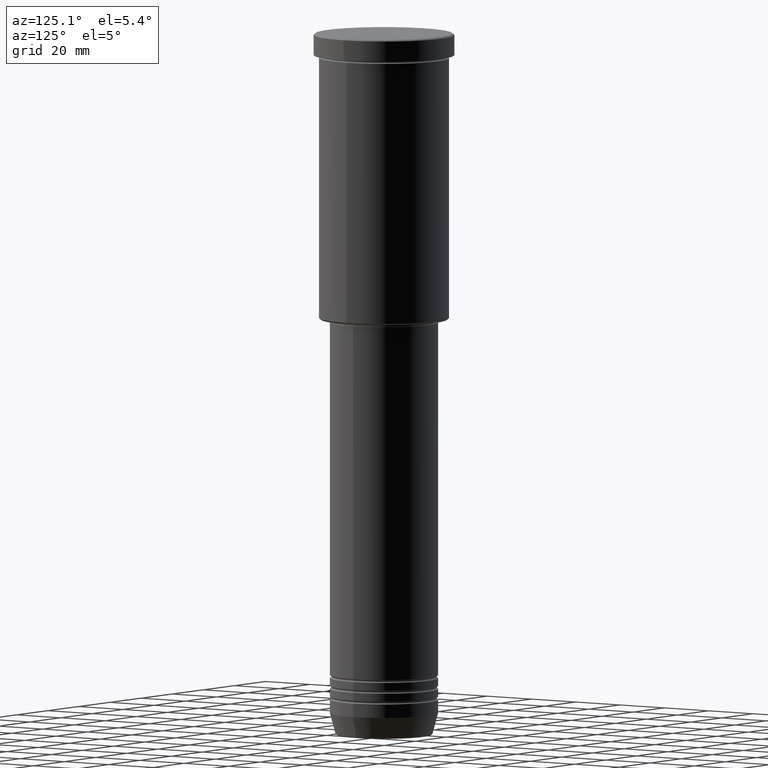
[diagram: clean part render]
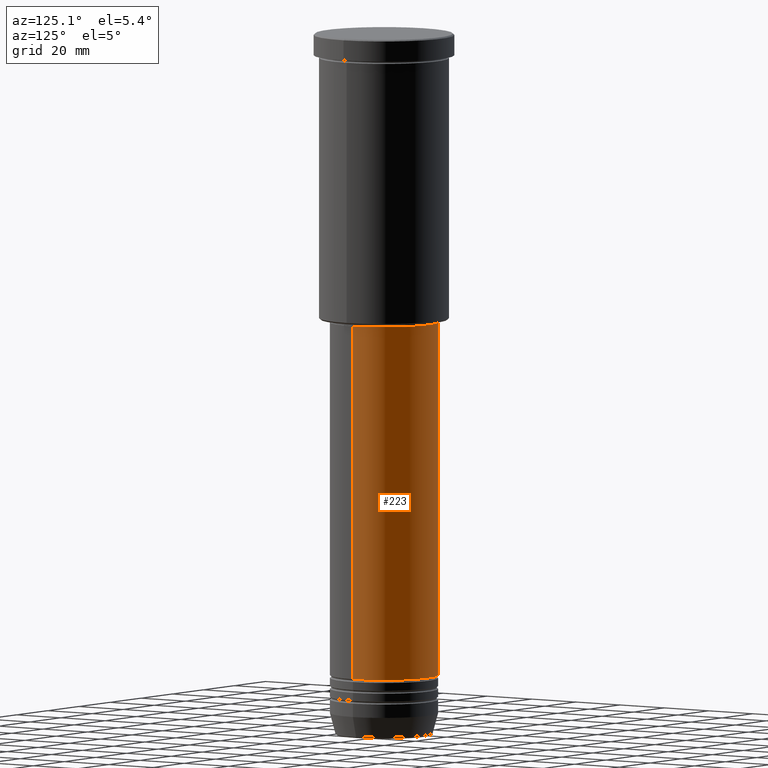
[diagram: same view with one face highlighted and labeled with its STEP entity id]
A machine part, auxiliary view. The second image highlights one B-rep face of the part: STEP entity #223.
In plain terms, the highlighted cylindrical surface (partial cylindrical patch) has radius 20 mm, axis along (-0, -0, 1).
Its self-contained STEP definition (entity closure, byte-faithful):
#42 = ORIENTED_EDGE ( 'NONE', *, *, #213, .F. ) ;
#48 = AXIS2_PLACEMENT_3D ( 'NONE', #582, #1117, #210 ) ;
#54 = LINE ( 'NONE', #785, #910 ) ;
#117 = AXIS2_PLACEMENT_3D ( 'NONE', #440, #810, #722 ) ;
#159 = ORIENTED_EDGE ( 'NONE', *, *, #1148, .F. ) ;
#197 = CIRCLE ( 'NONE', #734, 20.00000000000000355 ) ;
#210 = DIRECTION ( 'NONE',  ( 1.000000000000000000, 0.000000000000000000, 0.000000000000000000 ) ) ;
#213 = EDGE_CURVE ( 'NONE', #885, #525, #531, .T. ) ;
#223 = ADVANCED_FACE ( 'NONE', ( #1072 ), #1167, .T. ) ;
#235 = VERTEX_POINT ( 'NONE', #994 ) ;
#359 = CARTESIAN_POINT ( 'NONE',  ( 20.00000000000000355, 0.000000000000000000, 0.000000000000000000 ) ) ;
#438 = DIRECTION ( 'NONE',  ( -0.000000000000000000, -0.000000000000000000, 1.000000000000000000 ) ) ;
#440 = CARTESIAN_POINT ( 'NONE',  ( 0.000000000000000000, 0.000000000000000000, 0.000000000000000000 ) ) ;
#499 = CARTESIAN_POINT ( 'NONE',  ( 20.00000000000000355, 0.000000000000000000, -107.0000000000000142 ) ) ;
#520 = DIRECTION ( 'NONE',  ( -0.000000000000000000, -0.000000000000000000, 1.000000000000000000 ) ) ;
#525 = VERTEX_POINT ( 'NONE', #499 ) ;
#531 = LINE ( 'NONE', #359, #1074 ) ;
#582 = CARTESIAN_POINT ( 'NONE',  ( 0.000000000000000000, 0.000000000000000000, -107.0000000000000142 ) ) ;
#692 = DIRECTION ( 'NONE',  ( -0.000000000000000000, -0.000000000000000000, 1.000000000000000000 ) ) ;
#719 = DIRECTION ( 'NONE',  ( 1.000000000000000000, 0.000000000000000000, 0.000000000000000000 ) ) ;
#722 = DIRECTION ( 'NONE',  ( 1.000000000000000000, 0.000000000000000000, 0.000000000000000000 ) ) ;
#734 = AXIS2_PLACEMENT_3D ( 'NONE', #1169, #438, #719 ) ;
#759 = CIRCLE ( 'NONE', #48, 20.00000000000000355 ) ;
#785 = CARTESIAN_POINT ( 'NONE',  ( -20.00000000000000355, 2.449293598294706907E-15, 0.000000000000000000 ) ) ;
#807 = CARTESIAN_POINT ( 'NONE',  ( 20.00000000000000355, 0.000000000000000000, -238.0000000000000000 ) ) ;
#810 = DIRECTION ( 'NONE',  ( -0.000000000000000000, -0.000000000000000000, 1.000000000000000000 ) ) ;
#833 = EDGE_CURVE ( 'NONE', #902, #235, #54, .T. ) ;
#862 = ORIENTED_EDGE ( 'NONE', *, *, #833, .T. ) ;
#885 = VERTEX_POINT ( 'NONE', #807 ) ;
#889 = EDGE_CURVE ( 'NONE', #885, #902, #197, .T. ) ;
#902 = VERTEX_POINT ( 'NONE', #1004 ) ;
#910 = VECTOR ( 'NONE', #692, 1000.000000000000000 ) ;
#994 = CARTESIAN_POINT ( 'NONE',  ( -20.00000000000000355, 2.449293598294706907E-15, -107.0000000000000142 ) ) ;
#1004 = CARTESIAN_POINT ( 'NONE',  ( -20.00000000000000355, 2.449293598294706907E-15, -238.0000000000000000 ) ) ;
#1072 = FACE_OUTER_BOUND ( 'NONE', #1132, .T. ) ;
#1074 = VECTOR ( 'NONE', #520, 1000.000000000000000 ) ;
#1075 = ORIENTED_EDGE ( 'NONE', *, *, #889, .T. ) ;
#1117 = DIRECTION ( 'NONE',  ( -0.000000000000000000, -0.000000000000000000, 1.000000000000000000 ) ) ;
#1132 = EDGE_LOOP ( 'NONE', ( #1075, #862, #159, #42 ) ) ;
#1148 = EDGE_CURVE ( 'NONE', #525, #235, #759, .T. ) ;
#1167 = CYLINDRICAL_SURFACE ( 'NONE', #117, 20.00000000000000355 ) ;
#1169 = CARTESIAN_POINT ( 'NONE',  ( 0.000000000000000000, 0.000000000000000000, -238.0000000000000000 ) ) ;